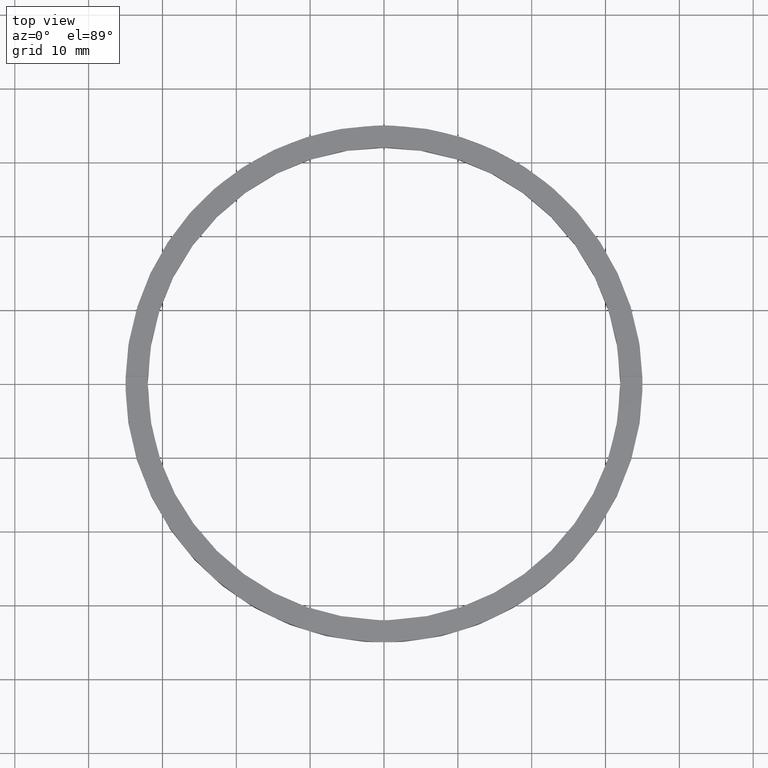
[diagram: clean part render]
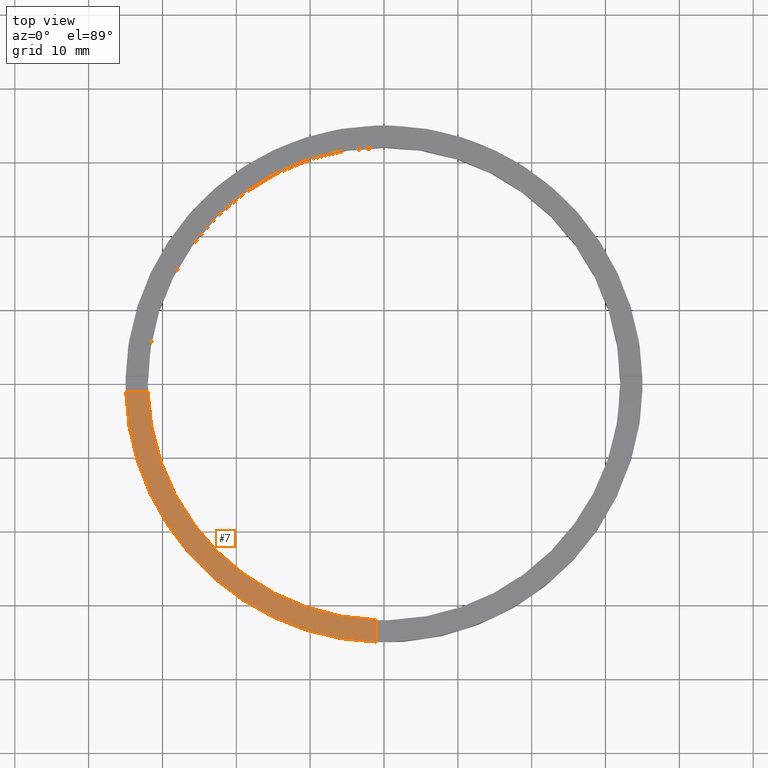
[diagram: same view with one face highlighted and labeled with its STEP entity id]
A machine part, top view. The second image highlights one B-rep face of the part: STEP entity #7.
In plain terms, the highlighted planar face has unit normal (0, 0, 1).
Its self-contained STEP definition (entity closure, byte-faithful):
#6 = DIRECTION ( 'NONE',  ( 1.301042606982605074E-16, -1.000000000000000000, 0.000000000000000000 ) ) ;
#7 = ADVANCED_FACE ( 'NONE', ( #358 ), #517, .T. ) ;
#35 = CARTESIAN_POINT ( 'NONE',  ( -1.000000000000160982, -31.98437118343894170, 3.500000000000000000 ) ) ;
#52 = CARTESIAN_POINT ( 'NONE',  ( 0.000000000000000000, 0.000000000000000000, 3.500000000000000000 ) ) ;
#62 = EDGE_LOOP ( 'NONE', ( #372, #604, #418, #90 ) ) ;
#69 = AXIS2_PLACEMENT_3D ( 'NONE', #52, #279, #566 ) ;
#90 = ORIENTED_EDGE ( 'NONE', *, *, #310, .T. ) ;
#112 = VERTEX_POINT ( 'NONE', #35 ) ;
#115 = DIRECTION ( 'NONE',  ( 0.000000000000000000, 0.000000000000000000, 1.000000000000000000 ) ) ;
#160 = CARTESIAN_POINT ( 'NONE',  ( -25.00000000000019540, -1.000000000000024869, 3.500000000000000000 ) ) ;
#169 = LINE ( 'NONE', #206, #439 ) ;
#183 = AXIS2_PLACEMENT_3D ( 'NONE', #442, #115, #278 ) ;
#185 = LINE ( 'NONE', #160, #696 ) ;
#206 = CARTESIAN_POINT ( 'NONE',  ( -1.000000000000161871, -25.00000000000018829, 3.500000000000000000 ) ) ;
#231 = CARTESIAN_POINT ( 'NONE',  ( 0.000000000000000000, 0.000000000000000000, 3.500000000000000000 ) ) ;
#247 = CARTESIAN_POINT ( 'NONE',  ( -31.98437118343894880, -1.000000000000026201, 3.500000000000000000 ) ) ;
#251 = CARTESIAN_POINT ( 'NONE',  ( -34.98571136907180801, -1.000000000000026645, 3.500000000000000000 ) ) ;
#278 = DIRECTION ( 'NONE',  ( 1.000000000000000000, 0.000000000000000000, 0.000000000000000000 ) ) ;
#279 = DIRECTION ( 'NONE',  ( 0.000000000000000000, 0.000000000000000000, 1.000000000000000000 ) ) ;
#292 = EDGE_CURVE ( 'NONE', #112, #389, #169, .T. ) ;
#310 = EDGE_CURVE ( 'NONE', #413, #389, #437, .T. ) ;
#358 = FACE_OUTER_BOUND ( 'NONE', #62, .T. ) ;
#372 = ORIENTED_EDGE ( 'NONE', *, *, #292, .F. ) ;
#389 = VERTEX_POINT ( 'NONE', #545 ) ;
#413 = VERTEX_POINT ( 'NONE', #251 ) ;
#418 = ORIENTED_EDGE ( 'NONE', *, *, #514, .F. ) ;
#437 = CIRCLE ( 'NONE', #69, 35.00000000000000711 ) ;
#439 = VECTOR ( 'NONE', #6, 1000.000000000000000 ) ;
#442 = CARTESIAN_POINT ( 'NONE',  ( 0.000000000000000000, 0.000000000000000000, 3.500000000000000000 ) ) ;
#445 = DIRECTION ( 'NONE',  ( 1.000000000000000000, 0.000000000000000000, -0.000000000000000000 ) ) ;
#460 = CIRCLE ( 'NONE', #183, 32.00000000000000000 ) ;
#514 = EDGE_CURVE ( 'NONE', #413, #649, #185, .T. ) ;
#517 = PLANE ( 'NONE',  #733 ) ;
#545 = CARTESIAN_POINT ( 'NONE',  ( -1.000000000000160538, -34.98571136907180090, 3.500000000000000000 ) ) ;
#548 = DIRECTION ( 'NONE',  ( 0.000000000000000000, 0.000000000000000000, 1.000000000000000000 ) ) ;
#557 = DIRECTION ( 'NONE',  ( 1.000000000000000000, 1.951563910473907735E-16, -0.000000000000000000 ) ) ;
#566 = DIRECTION ( 'NONE',  ( 1.000000000000000000, 0.000000000000000000, 0.000000000000000000 ) ) ;
#604 = ORIENTED_EDGE ( 'NONE', *, *, #705, .F. ) ;
#649 = VERTEX_POINT ( 'NONE', #247 ) ;
#696 = VECTOR ( 'NONE', #557, 1000.000000000000000 ) ;
#705 = EDGE_CURVE ( 'NONE', #649, #112, #460, .T. ) ;
#733 = AXIS2_PLACEMENT_3D ( 'NONE', #231, #548, #445 ) ;